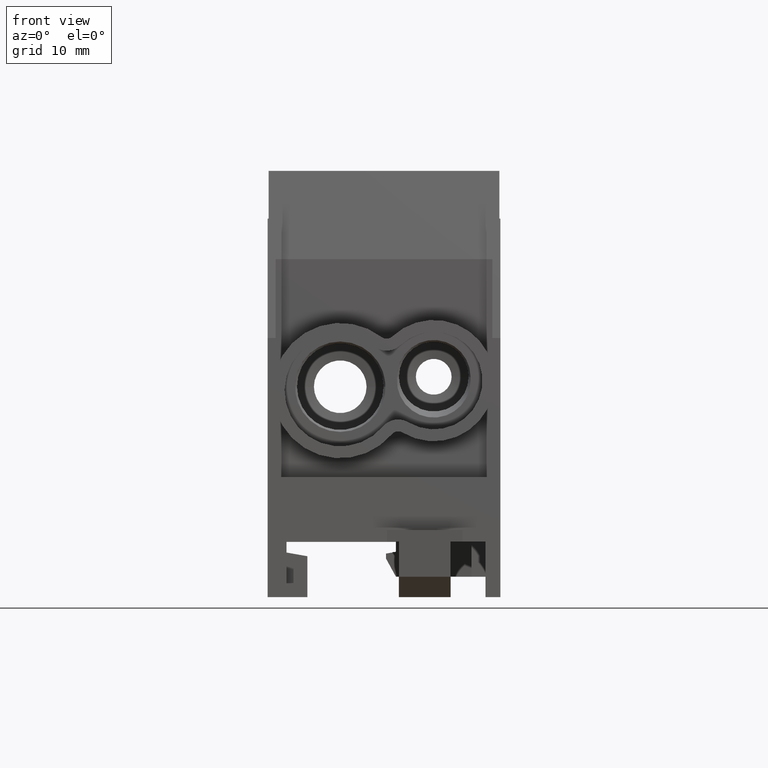
[diagram: clean part render]
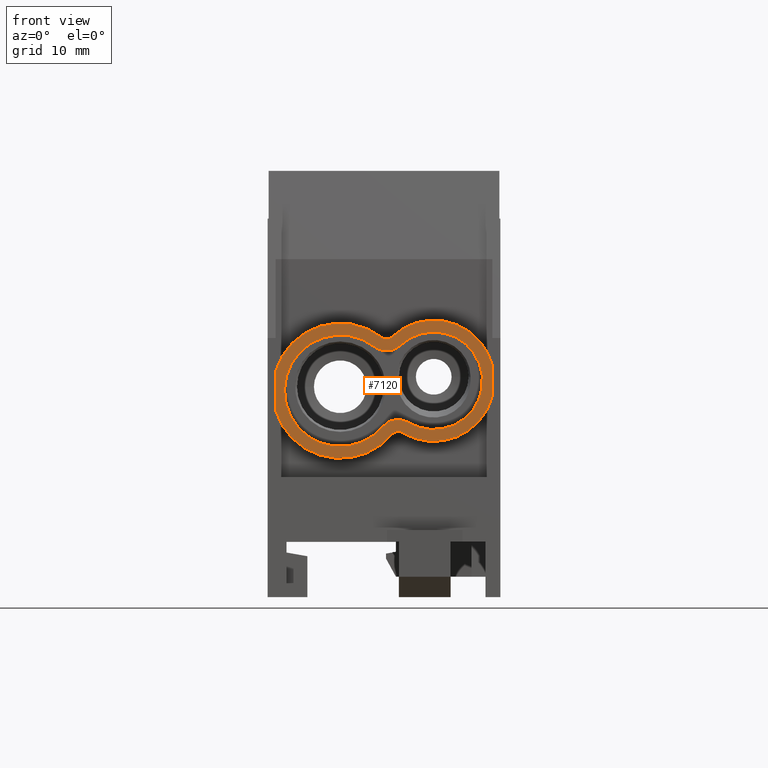
[diagram: same view with one face highlighted and labeled with its STEP entity id]
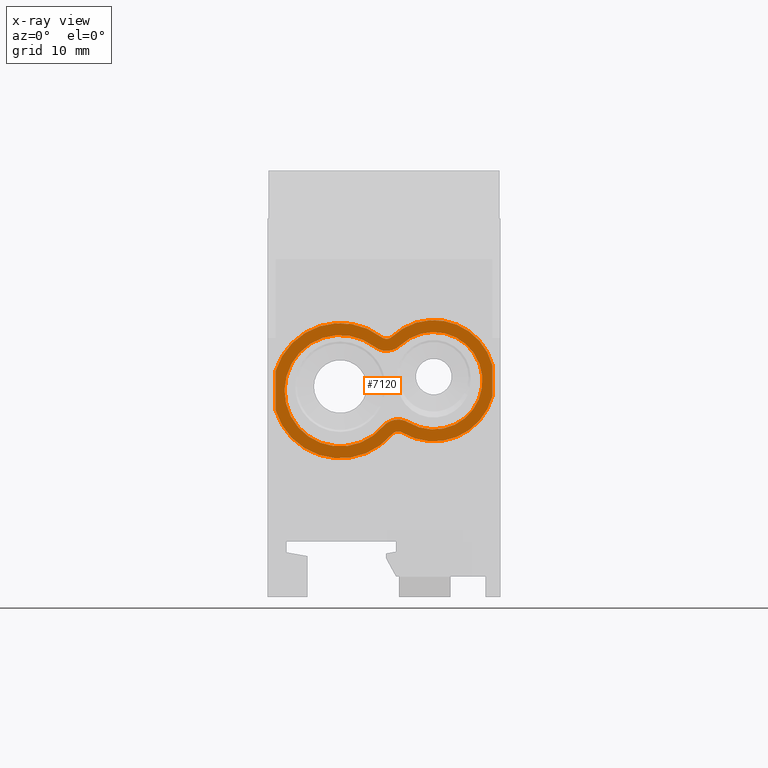
[diagram: x-ray of the same camera — body ghosted, the highlighted face saturated]
A machine part, front view. The second image highlights one B-rep face of the part: STEP entity #7120.
The next image is the same camera in x-ray: the body ghosted, the highlighted face saturated — about 0% of this face is hidden behind the body in this view.
In plain terms, the highlighted planar face has unit normal (0, -1, 0).
Its self-contained STEP definition (entity closure, byte-faithful):
#5680=CARTESIAN_POINT('',(10.9,-27.5,6.65080666151701));
#5690=VERTEX_POINT('',#5680);
#5740=CARTESIAN_POINT('',(10.9,-27.5,29.745359338705));
#5750=DIRECTION('',(0.,0.,1.));
#5760=VECTOR('',#5750,1.);
#5770=LINE('',#5740,#5760);
#5780=CARTESIAN_POINT('',(10.9,-27.5,9.74919333848297));
#5790=VERTEX_POINT('',#5780);
#5800=EDGE_CURVE('',#5690,#5790,#5770,.T.);
#6060=CARTESIAN_POINT('',(5.00000000000001,-27.5,8.19999999999999));
#6070=DIRECTION('',(0.,-1.,0.));
#6080=DIRECTION('',(0.,0.,1.));
#6090=AXIS2_PLACEMENT_3D('',#6060,#6070,#6080);
#6100=PLANE('',#6090);
#6110=CARTESIAN_POINT('',(5.00000000000001,-27.5,8.19999999999999));
#6120=DIRECTION('',(0.,-1.,0.));
#6130=DIRECTION('',(0.,0.,-1.));
#6140=AXIS2_PLACEMENT_3D('',#6110,#6120,#6130);
#6150=CIRCLE('',#6140,4.9);
#6160=CARTESIAN_POINT('',(2.45328816581498,-27.5,4.01380138626677));
#6170=VERTEX_POINT('',#6160);
#6180=CARTESIAN_POINT('',(1.6295738610946,-27.5,11.7567158506385));
#6190=VERTEX_POINT('',#6180);
#6200=EDGE_CURVE('',#6170,#6190,#6150,.T.);
#6210=ORIENTED_EDGE('',*,*,#6200,.F.);
#6220=CARTESIAN_POINT('',(0.253889722765851,-27.5,13.2084366060011));
#6230=DIRECTION('',(-1.22108605138914E-16,1.,-1.77619756370172E-16));
#6240=DIRECTION('',(-5.55111512312579E-17,1.77619756370172E-16,1.));
#6250=AXIS2_PLACEMENT_3D('',#6220,#6230,#6240);
#6260=CIRCLE('',#6250,2.);
#6270=CARTESIAN_POINT('',(-0.970818099014569,-27.5,11.627269078106));
#6280=VERTEX_POINT('',#6270);
#6290=EDGE_CURVE('',#6190,#6280,#6260,.T.);
#6300=ORIENTED_EDGE('',*,*,#6290,.F.);
#6310=CARTESIAN_POINT('',(-4.39999999999999,-27.5,7.19999999999999));
#6320=DIRECTION('',(0.,-1.,0.));
#6330=DIRECTION('',(0.,0.,-1.));
#6340=AXIS2_PLACEMENT_3D('',#6310,#6320,#6330);
#6350=CIRCLE('',#6340,5.6);
#6360=CARTESIAN_POINT('',(-0.116137091109263,-27.5,3.5932676037956));
#6370=VERTEX_POINT('',#6360);
#6380=EDGE_CURVE('',#6280,#6370,#6350,.T.);
#6390=ORIENTED_EDGE('',*,*,#6380,.F.);
#6400=CARTESIAN_POINT('',(1.41381394778029,-27.5,2.30514889086546));
#6410=DIRECTION('',(-1.22108605138914E-16,1.,-1.77619756370172E-16));
#6420=DIRECTION('',(-5.55111512312579E-17,1.77619756370172E-16,1.));
#6430=AXIS2_PLACEMENT_3D('',#6400,#6410,#6420);
#6440=CIRCLE('',#6430,2.);
#6450=EDGE_CURVE('',#6370,#6170,#6440,.T.);
#6460=ORIENTED_EDGE('',*,*,#6450,.F.);
#6470=EDGE_LOOP('',(#6460,#6390,#6300,#6210));
#6480=FACE_BOUND('',#6470,.T.);
#6490=CARTESIAN_POINT('',(5.00000000000001,-27.5,8.19999999999999));
#6500=DIRECTION('',(0.,1.,0.));
#6510=DIRECTION('',(0.,0.,1.));
#6520=AXIS2_PLACEMENT_3D('',#6490,#6500,#6510);
#6530=CIRCLE('',#6520,6.1);
#6540=CARTESIAN_POINT('',(1.82960363499417,-27.5,2.98860988902598));
#6550=VERTEX_POINT('',#6540);
#6560=EDGE_CURVE('',#5690,#6550,#6530,.T.);
#6570=ORIENTED_EDGE('',*,*,#6560,.F.);
#6580=CARTESIAN_POINT('',(1.41381394778028,-27.5,2.30514889086545));
#6590=DIRECTION('',(0.,1.,0.));
#6600=DIRECTION('',(1.,0.,0.));
#6610=AXIS2_PLACEMENT_3D('',#6580,#6590,#6600);
#6620=CIRCLE('',#6610,0.8);
#6630=CARTESIAN_POINT('',(0.801833532224467,-27.5,2.82039637603751));
#6640=VERTEX_POINT('',#6630);
#6650=EDGE_CURVE('',#6640,#6550,#6620,.T.);
#6660=ORIENTED_EDGE('',*,*,#6650,.T.);
#6670=CARTESIAN_POINT('',(-4.39999999999999,-27.5,7.19999999999999));
#6680=DIRECTION('',(0.,1.,0.));
#6690=DIRECTION('',(0.,0.,1.));
#6700=AXIS2_PLACEMENT_3D('',#6670,#6680,#6690);
#6710=CIRCLE('',#6700,6.8);
#6720=CARTESIAN_POINT('',(-10.9,-27.5,5.20250156445618));
#6730=VERTEX_POINT('',#6720);
#6740=EDGE_CURVE('',#6640,#6730,#6710,.T.);
#6750=ORIENTED_EDGE('',*,*,#6740,.F.);
#6760=CARTESIAN_POINT('',(-10.9,-27.5,29.745359338705));
#6770=DIRECTION('',(0.,0.,-1.));
#6780=VECTOR('',#6770,1.);
#6790=LINE('',#6760,#6780);
#6800=CARTESIAN_POINT('',(-10.9,-27.5,9.19749843554379));
#6810=VERTEX_POINT('',#6800);
#6820=EDGE_CURVE('',#6810,#6730,#6790,.T.);
#6830=ORIENTED_EDGE('',*,*,#6820,.T.);
#6840=CARTESIAN_POINT('',(-4.39999999999999,-27.5,7.19999999999999));
#6850=DIRECTION('',(0.,1.,0.));
#6860=DIRECTION('',(0.,0.,1.));
#6870=AXIS2_PLACEMENT_3D('',#6840,#6850,#6860);
#6880=CIRCLE('',#6870,6.8);
#6890=CARTESIAN_POINT('',(-0.235993405946349,-27.5,12.5759695948431));
#6900=VERTEX_POINT('',#6890);
#6910=EDGE_CURVE('',#6810,#6900,#6880,.T.);
#6920=ORIENTED_EDGE('',*,*,#6910,.F.);
#6930=CARTESIAN_POINT('',(0.253889722765845,-27.5,13.2084366060011));
#6940=DIRECTION('',(0.,1.,0.));
#6950=DIRECTION('',(1.,0.,0.));
#6960=AXIS2_PLACEMENT_3D('',#6930,#6940,#6950);
#6970=CIRCLE('',#6960,0.8);
#6980=CARTESIAN_POINT('',(0.804163378097342,-27.5,12.6277483038561));
#6990=VERTEX_POINT('',#6980);
#7000=EDGE_CURVE('',#6990,#6900,#6970,.T.);
#7010=ORIENTED_EDGE('',*,*,#7000,.T.);
#7020=CARTESIAN_POINT('',(5.00000000000001,-27.5,8.19999999999999));
#7030=DIRECTION('',(0.,1.,0.));
#7040=DIRECTION('',(0.,0.,1.));
#7050=AXIS2_PLACEMENT_3D('',#7020,#7030,#7040);
#7060=CIRCLE('',#7050,6.1);
#7070=EDGE_CURVE('',#6990,#5790,#7060,.T.);
#7080=ORIENTED_EDGE('',*,*,#7070,.F.);
#7090=ORIENTED_EDGE('',*,*,#5800,.T.);
#7100=EDGE_LOOP('',(#7090,#7080,#7010,#6920,#6830,#6750,#6660,#6570));
#7110=FACE_OUTER_BOUND('',#7100,.T.);
#7120=ADVANCED_FACE('',(#6480,#7110),#6100,.T.);